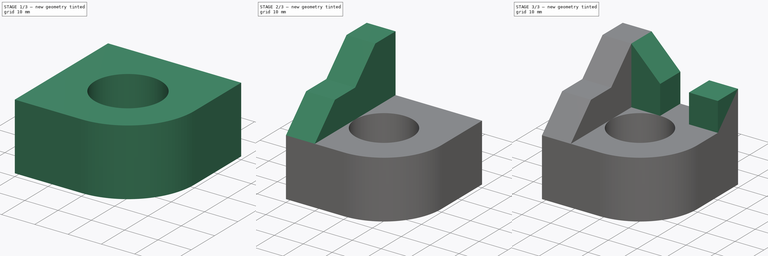
[diagram: build sequence overview — one tinted view per stage of 3, left to right]
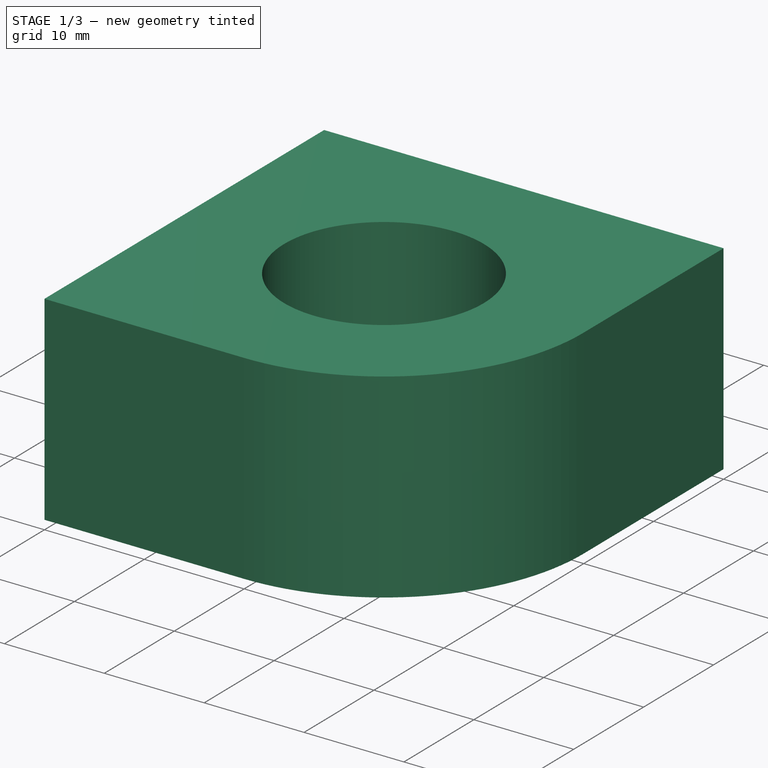
[diagram: stage 1 of 3 — iso view after this stage's code; geometry added in this stage tinted green]
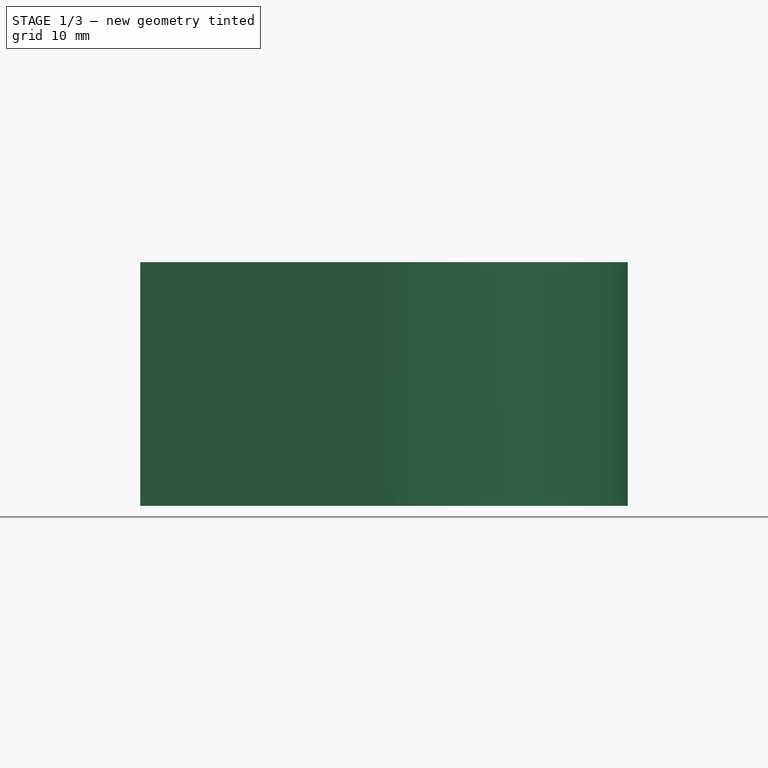
[diagram: stage 1 of 3 — front view after this stage's code; geometry added in this stage tinted green]
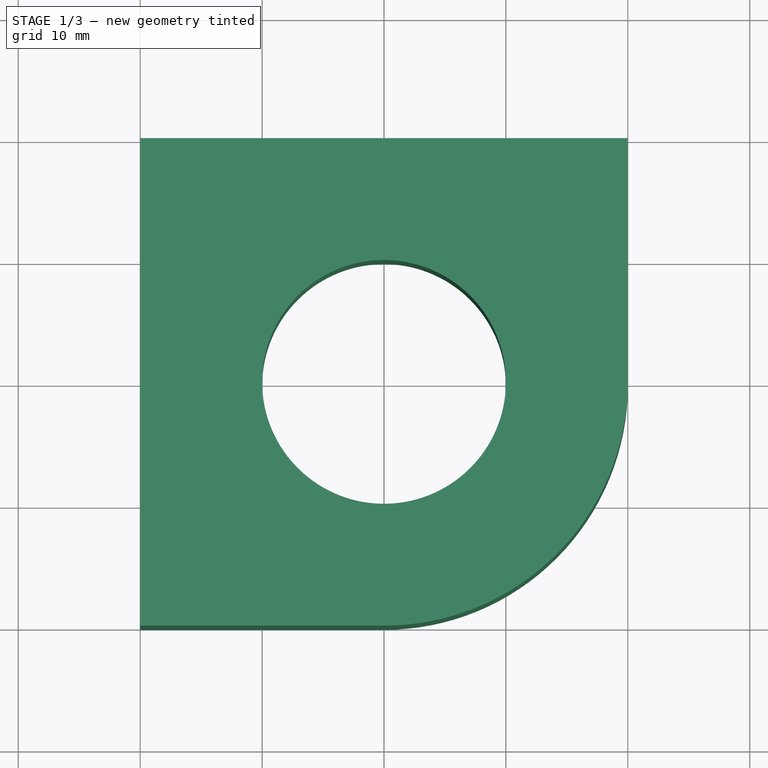
[diagram: stage 1 of 3 — top view after this stage's code; geometry added in this stage tinted green]
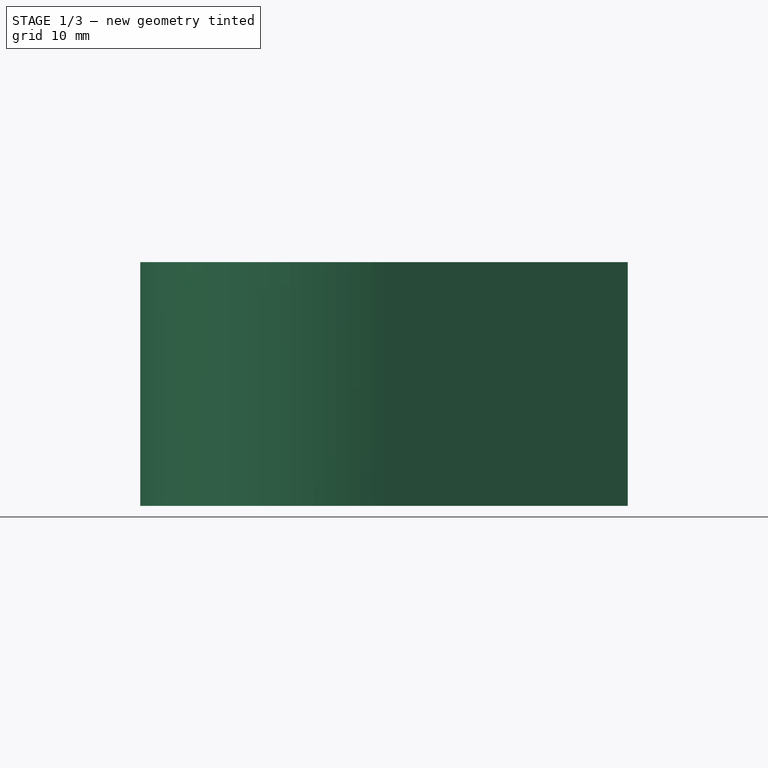
[diagram: stage 1 of 3 — right view after this stage's code; geometry added in this stage tinted green]
FCSTD DOCUMENT  (FreeCAD 1.0R39109 (Git))
Label: 20
License: All rights reserved
LicenseURL: https://en.wikipedia.org/wiki/All_rights_reserved
objects: Sketcher::SketchObject×5, PartDesign::Pad×4, PartDesign::Pocket×1, PartDesign::Body×1
note: 26 computed .brp shape members not serialized (recipe doc carries the construction recipe); baked Part::Feature solids carry a one-line shape summary decoded from their .brp

FEATURE [Sketcher::SketchObject] Sketch
  ArcFitTolerance = 1e-06
  AttachmentSupport = -> [XY_Plane]
  FullyConstrained = true
  MakeInternals = false
  MapMode = 5
  sketch-geometry (7):
    g0: LineSegment StartX=-20 StartY=-20 StartZ=0 EndX=-3.6e-15 EndY=-20 EndZ=0
    g1: LineSegment StartX=20 StartY=-5e-15 StartZ=0 EndX=20 EndY=20 EndZ=0
    g2: LineSegment StartX=20 StartY=20 StartZ=0 EndX=-20 EndY=20 EndZ=0
    g3: LineSegment StartX=-20 StartY=20 StartZ=0 EndX=-20 EndY=-20 EndZ=0
    g4: GeomPoint [constr] X=0 Y=0 Z=0
    g5: ArcOfCircle CenterX=5e-16 CenterY=-1e-16 CenterZ=0 NormalX=0 NormalY=0 NormalZ=1 AngleXU=0 Radius=20 StartAngle=4.71239 EndAngle=6.28319
    g6: GeomPoint [constr] X=20 Y=-20 Z=0
  constraints (16):
    c: Coincident(g1,g2)
    c: Coincident(g2,g3)
    c: Coincident(g3,g0)
    c: Horizontal(g0)
    c: Horizontal(g2)
    c: Vertical(g1)
    c: Vertical(g3)
    c: Symmetric(g2,g0,g4)
    c: Distance(g6,g3) = 40
    c: Distance(g0,g2) = 40
    c: Coincident(g4,g-1)
    c: PointOnObject(g6,g0)
    c: PointOnObject(g6,g1)
    c: Tangent(g0,g5) = -1.5708
    c: Tangent(g1,g5) = -1.5708
    c: Radius(g5) = 20
FEATURE [PartDesign::Pad] Pad
  Direction = (0,0,1)
  Length = 20
  Length2 = 10
  Profile = -> Sketch
  ReferenceAxis = -> Sketch [N_Axis]
  Refine = true
  Suppressed = false
  Type = 0
FEATURE [Sketcher::SketchObject] Sketch001
  ArcFitTolerance = 1e-06
  AttachmentSupport = -> [Pad]
  FullyConstrained = true
  MakeInternals = false
  MapMode = 5
  Placement = pos=(0,0,20) rot=(0,0,1;0rad)
  sketch-geometry (1):
    g0: Circle CenterX=0 CenterY=0 CenterZ=0 NormalX=0 NormalY=0 NormalZ=1 AngleXU=0 Radius=10
  constraints (2):
    c: Diameter(g0) = 20
    c: Coincident(g0,g-1)
FEATURE [PartDesign::Pocket] Pocket
  BaseFeature = -> Pad
  Direction = (0,0,-1)
  Length = 5
  Length2 = 5
  Profile = -> Sketch001
  ReferenceAxis = -> Sketch001 [N_Axis]
  Refine = true
  Suppressed = false
  Type = 1
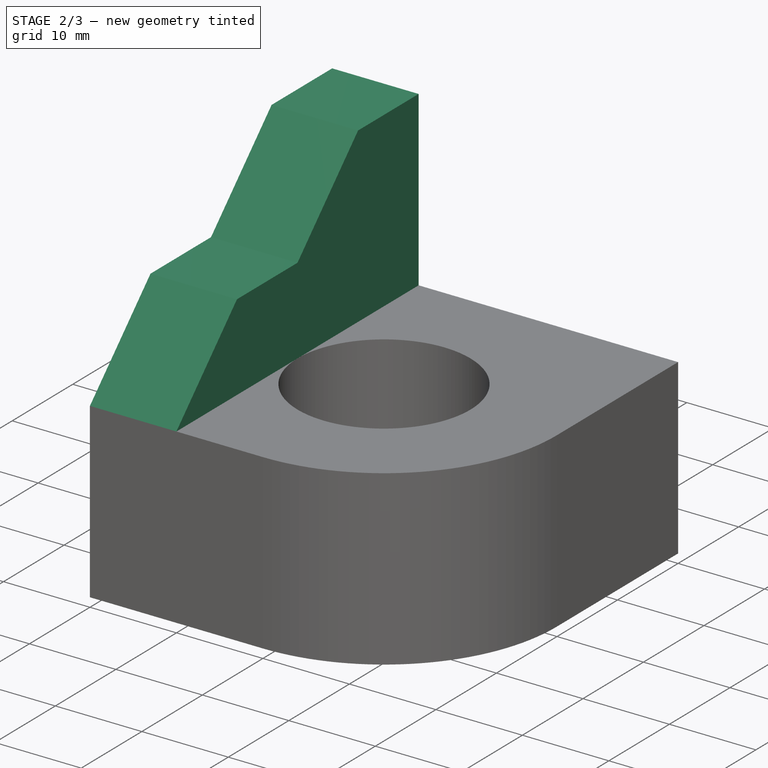
[diagram: stage 2 of 3 — iso view after this stage's code; geometry added in this stage tinted green]
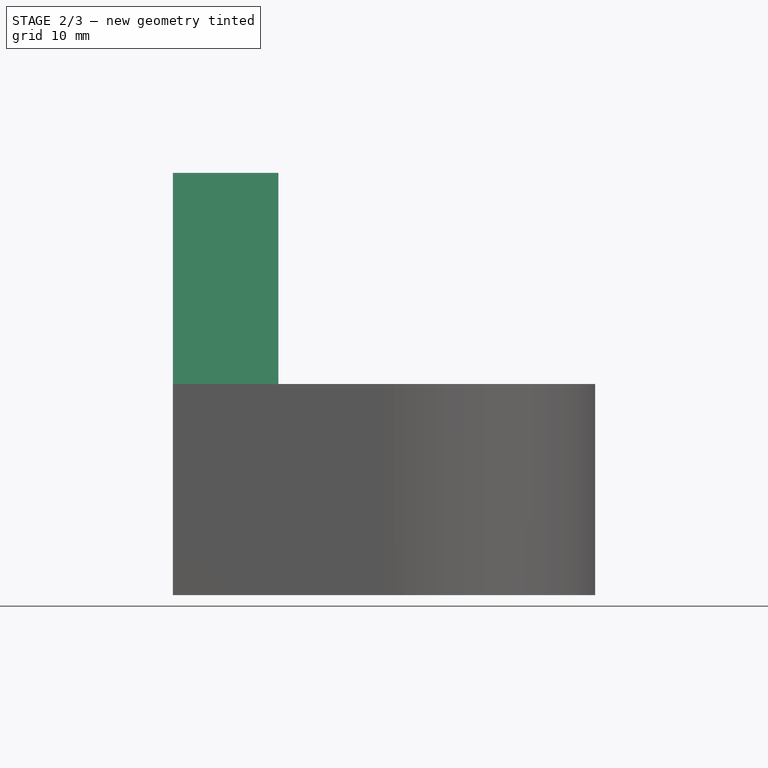
[diagram: stage 2 of 3 — front view after this stage's code; geometry added in this stage tinted green]
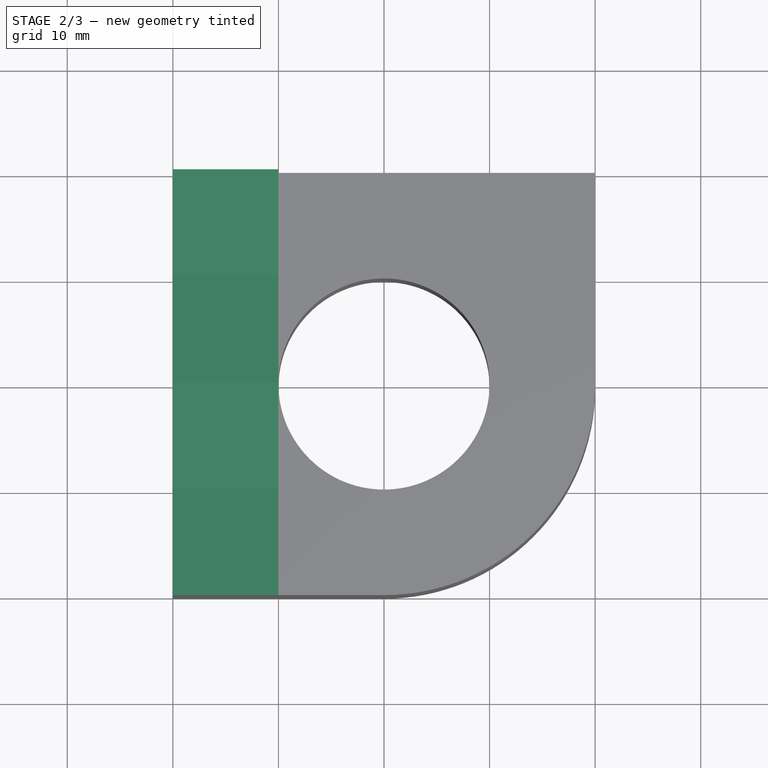
[diagram: stage 2 of 3 — top view after this stage's code; geometry added in this stage tinted green]
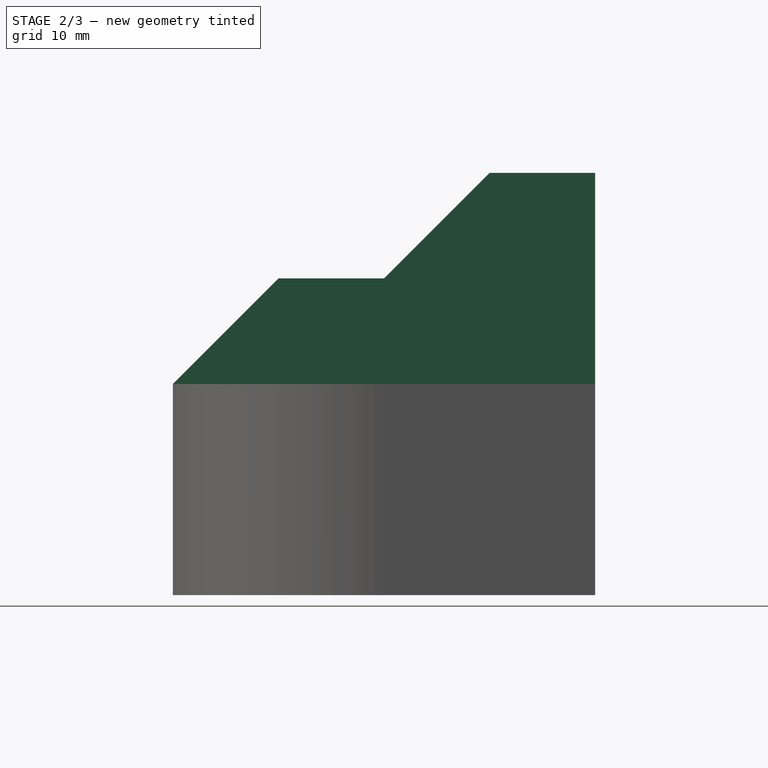
[diagram: stage 2 of 3 — right view after this stage's code; geometry added in this stage tinted green]
FEATURE [Sketcher::SketchObject] Sketch002
  ArcFitTolerance = 1e-06
  AttachmentSupport = -> [Pocket]
  ExternalGeometry = -> [Pocket]
  FullyConstrained = true
  MakeInternals = false
  MapMode = 5
  Placement = pos=(-20,0,0) rot=(0.57735,-0.57735,-0.57735;2.0944rad)
  sketch-geometry (6):
    g0: LineSegment StartX=-20 StartY=20 StartZ=0 EndX=-20 EndY=40 EndZ=0
    g1: LineSegment StartX=-20 StartY=40 StartZ=0 EndX=-10 EndY=40 EndZ=0
    g2: LineSegment StartX=-10 StartY=40 StartZ=0 EndX=-4.1e-15 EndY=30 EndZ=0
    g3: LineSegment StartX=-4.1e-15 StartY=30 StartZ=0 EndX=10 EndY=30 EndZ=0
    g4: LineSegment StartX=10 StartY=30 StartZ=0 EndX=20 EndY=20 EndZ=0
    g5: LineSegment StartX=20 StartY=20 StartZ=0 EndX=-20 EndY=20 EndZ=0
  constraints (16):
    c: Coincident(g-3,g0)
    c: Vertical(g0)
    c: Coincident(g0,g1)
    c: Horizontal(g1)
    c: Coincident(g1,g2)
    c: Coincident(g2,g3)
    c: Horizontal(g3)
    c: Coincident(g3,g4)
    c: Coincident(g4,g-3)
    c: Coincident(g4,g5)
    c: Coincident(g5,g0)
    c: DistanceX(g1,g2) = 10
    c: DistanceX(g2,g3) = 10
    c: DistanceX(g1,g1) = 10
    c: DistanceY(g0,g0) = 20
    c: Equal(g2,g4)
FEATURE [PartDesign::Pad] Pad001
  BaseFeature = -> Pocket
  Direction = (-1,0,0)
  Length = 10
  Length2 = 10
  Profile = -> Sketch002
  ReferenceAxis = -> Sketch002 [N_Axis]
  Refine = true
  Reversed = true
  Suppressed = false
  Type = 0
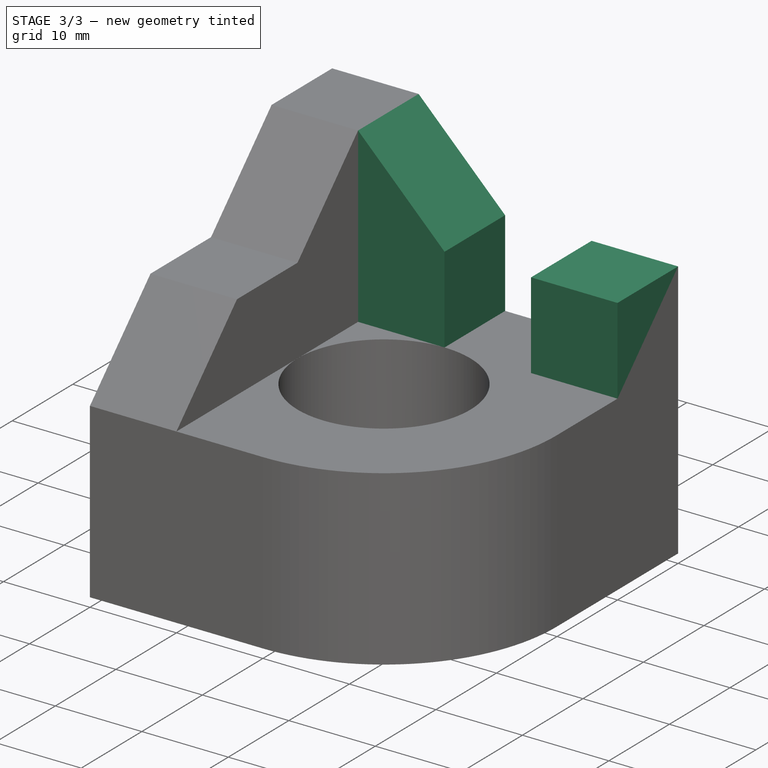
[diagram: stage 3 of 3 — iso view after this stage's code; geometry added in this stage tinted green]
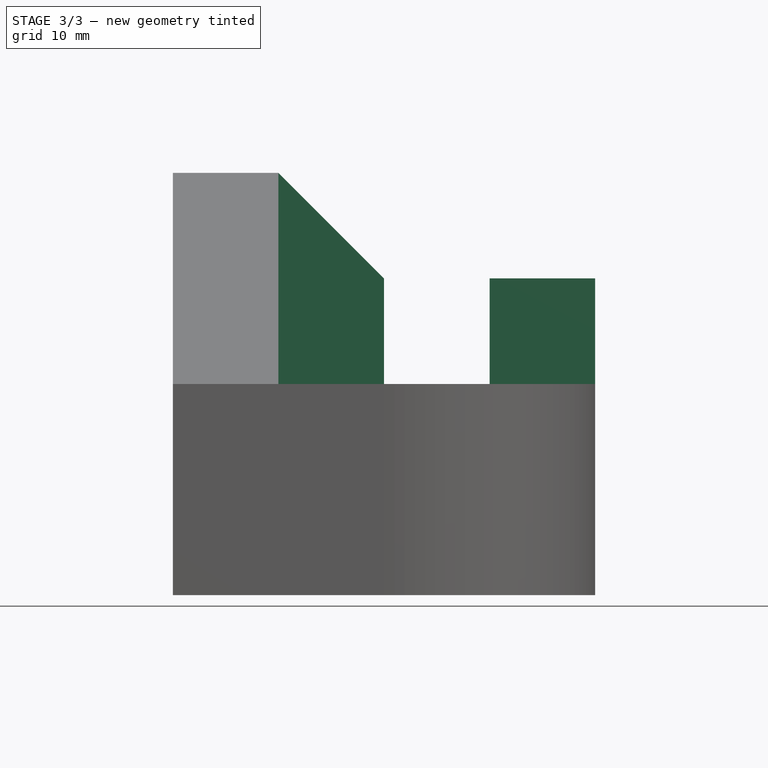
[diagram: stage 3 of 3 — front view after this stage's code; geometry added in this stage tinted green]
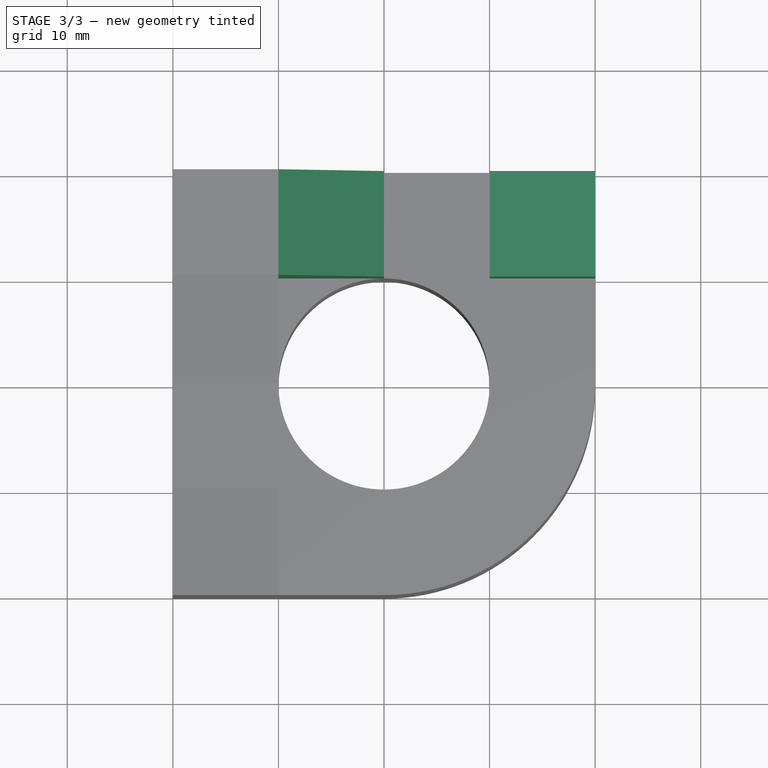
[diagram: stage 3 of 3 — top view after this stage's code; geometry added in this stage tinted green]
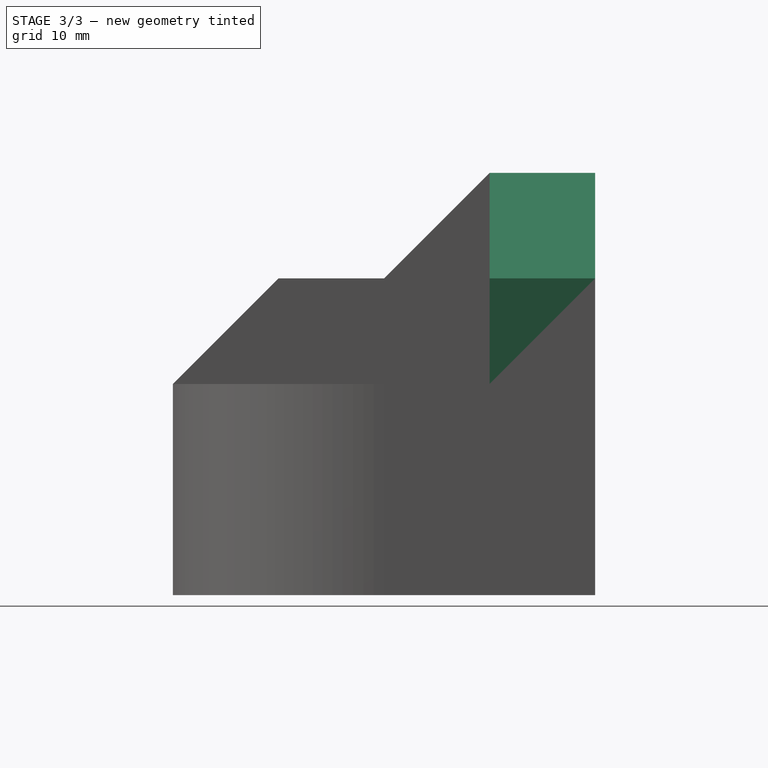
[diagram: stage 3 of 3 — right view after this stage's code; geometry added in this stage tinted green]
FEATURE [Sketcher::SketchObject] Sketch003
  ArcFitTolerance = 1e-06
  AttachmentSupport = -> [Pad001]
  ExternalGeometry = -> [Pad001]
  FullyConstrained = true
  MakeInternals = false
  MapMode = 5
  Placement = pos=(0,20,0) rot=(0,0.707107,0.707107;3.14159rad)
  sketch-geometry (4):
    g0: LineSegment StartX=10 StartY=40 StartZ=0 EndX=-1.8e-15 EndY=30 EndZ=0
    g1: LineSegment StartX=-1.8e-15 StartY=30 StartZ=0 EndX=-1.8e-15 EndY=20 EndZ=0
    g2: LineSegment StartX=-1.8e-15 StartY=20 StartZ=0 EndX=10 EndY=20 EndZ=0
    g3: LineSegment StartX=10 StartY=20 StartZ=0 EndX=10 EndY=40 EndZ=0
  constraints (10):
    c: Coincident(g0,g-3)
    c: Coincident(g1,g0)
    c: PointOnObject(g1,g-4)
    c: Coincident(g2,g1)
    c: Coincident(g2,g-4)
    c: Coincident(g3,g2)
    c: Coincident(g3,g0)
    c: Vertical(g1)
    c: Angle(g0,g1) = 0.785398
    c: DistanceY(g1,g1) = 10
FEATURE [PartDesign::Pad] Pad002
  BaseFeature = -> Pad001
  Direction = (0,1,-2e-16)
  Length = 10
  Length2 = 10
  Profile = -> Sketch003
  ReferenceAxis = -> Sketch003 [N_Axis]
  Refine = true
  Reversed = true
  Suppressed = false
  Type = 0
FEATURE [Sketcher::SketchObject] Sketch004
  ArcFitTolerance = 1e-06
  AttachmentSupport = -> [Pad002]
  ExternalGeometry = -> [Pad002]
  FullyConstrained = true
  MakeInternals = false
  MapMode = 5
  Placement = pos=(0,0,20) rot=(0,0,1;0rad)
  sketch-geometry (4):
    g0: LineSegment StartX=20 StartY=20 StartZ=0 EndX=10 EndY=20 EndZ=0
    g1: LineSegment StartX=10 StartY=20 StartZ=0 EndX=10 EndY=10 EndZ=0
    g2: LineSegment StartX=10 StartY=10 StartZ=0 EndX=20 EndY=10 EndZ=0
    g3: LineSegment StartX=20 StartY=10 StartZ=0 EndX=20 EndY=20 EndZ=0
  constraints (11):
    c: Coincident(g0,g1)
    c: Coincident(g1,g2)
    c: Coincident(g2,g3)
    c: Coincident(g3,g0)
    c: Horizontal(g0)
    c: Horizontal(g2)
    c: Vertical(g1)
    c: Vertical(g3)
    c: Distance(g1,g3) = 10
    c: Distance(g0,g2) = 10
    c: Coincident(g0,g-4)
FEATURE [PartDesign::Pad] Pad003
  BaseFeature = -> Pad002
  Direction = (0,0,1)
  Length = 10
  Length2 = 10
  Profile = -> Sketch004
  ReferenceAxis = -> Sketch004 [N_Axis]
  Refine = true
  Suppressed = false
  Type = 0
FEATURE [PartDesign::Body] Body
  AllowCompound = false
  Group = -> [Sketch,Pad,Sketch001,Pocket,Sketch002,Pad001,Sketch003,Pad002,Sketch004,Pad003]
  Origin = -> Origin
  Tip = -> Pad003
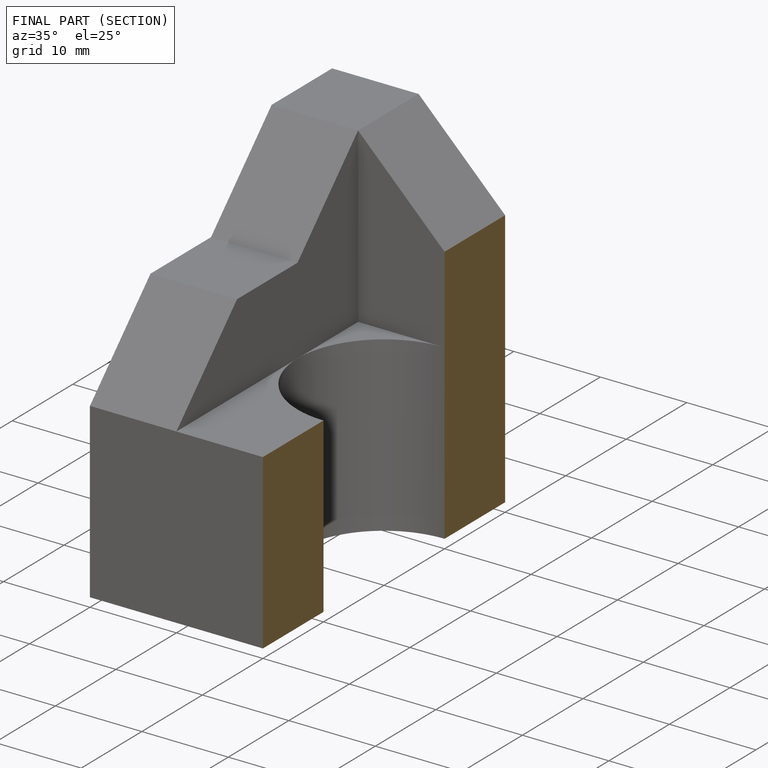
[diagram: finished part — half-section view (interior)]
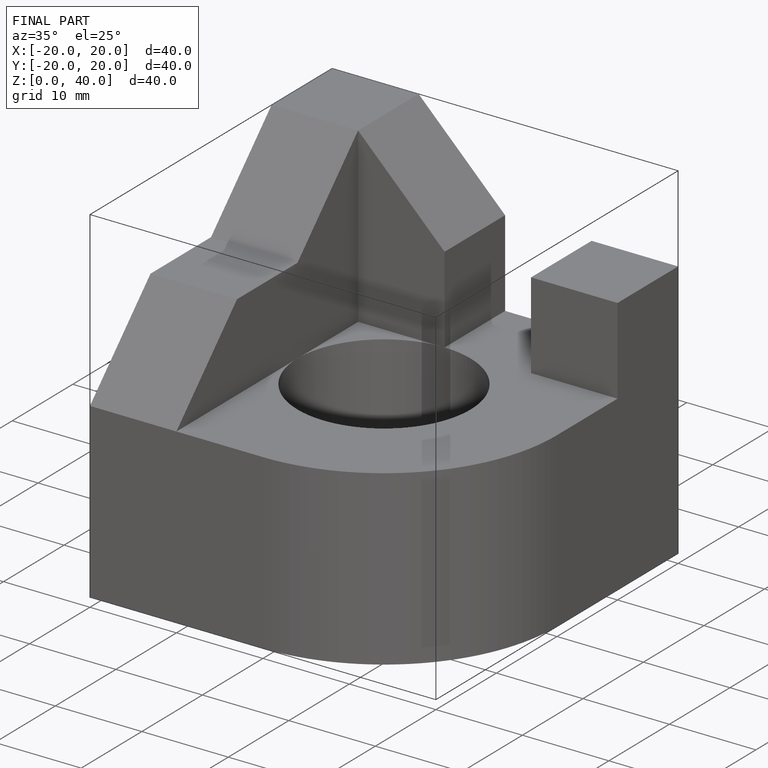
[diagram: finished part — iso view with bounding-box wireframe]
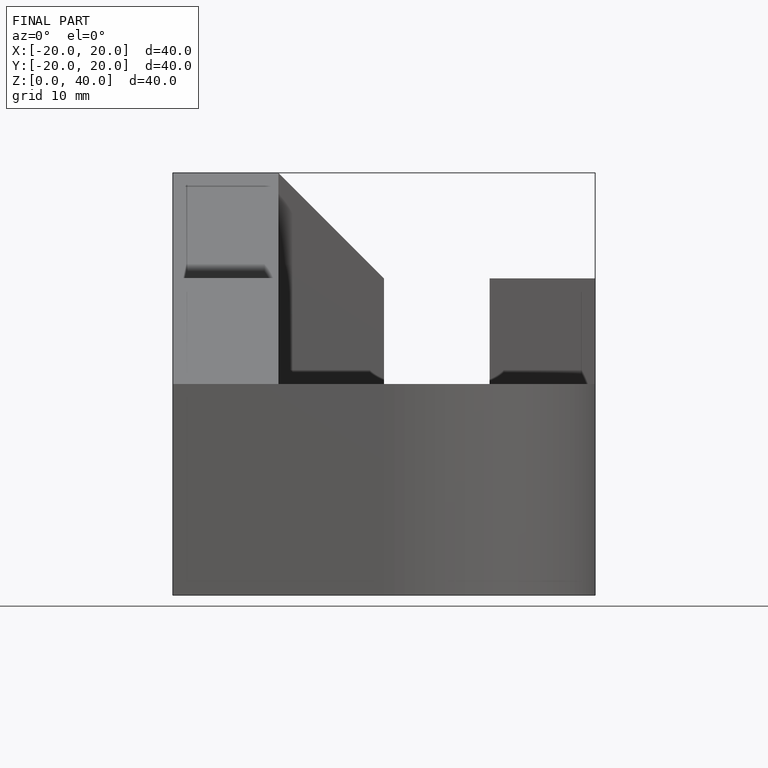
[diagram: finished part — front view with bounding-box wireframe]
